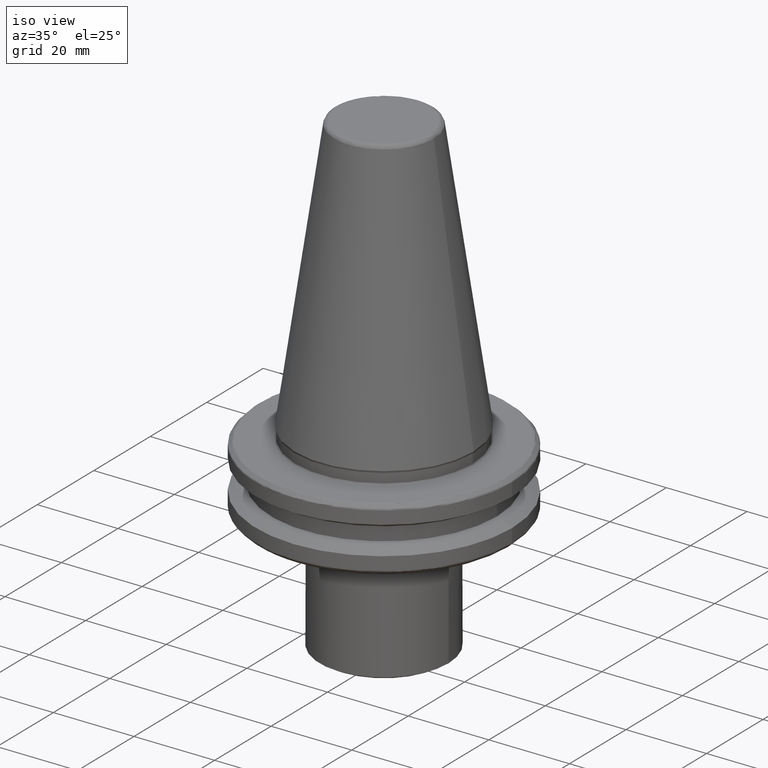
[diagram: clean part render]
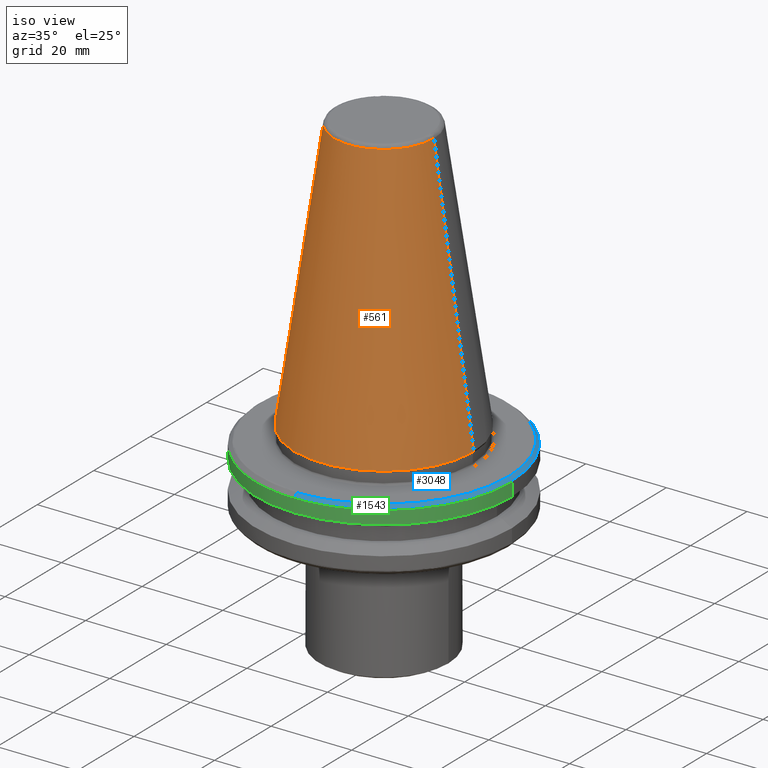
[diagram: same view with three faces highlighted in distinct colors, each labeled with its STEP entity id]
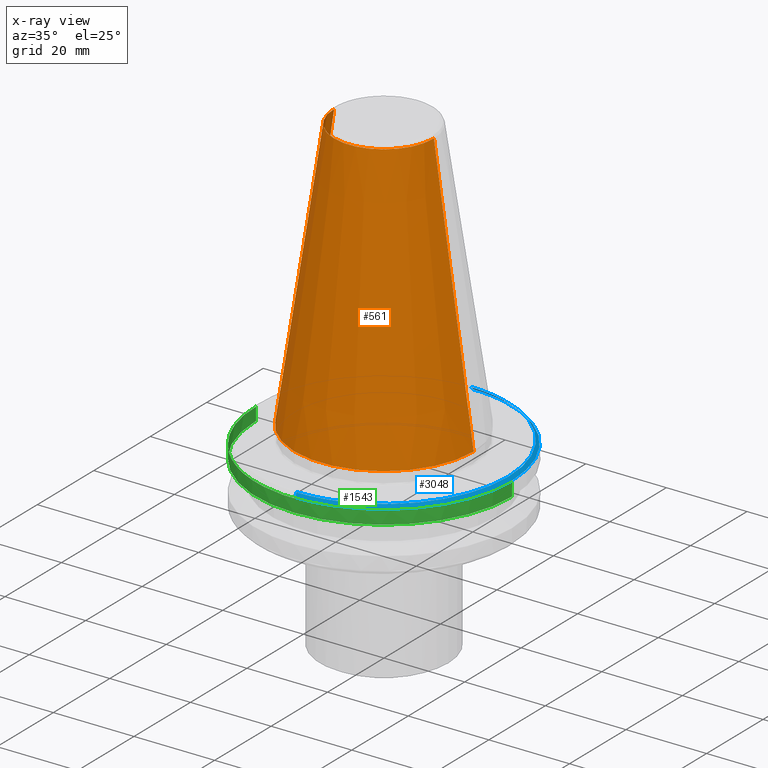
[diagram: x-ray of the same camera — body ghosted, the three highlighted faces saturated]
A machine part, iso view with three faces highlighted in distinct colors.
The next image is the same camera in x-ray (body ghosted, the three faces saturated) — at least one of them is partly hidden behind the body in this view.
Their STEP definitions:

[orange] entity #561 — the highlighted conical surface has half-angle 8.297 deg.
#49 = VERTEX_POINT ( 'NONE', #1449 ) ;
#183 = VERTEX_POINT ( 'NONE', #1882 ) ;
#188 = CARTESIAN_POINT ( 'NONE',  ( 0.0000000000000000000, 0.0000000000000000000, 67.54430822726730800 ) ) ;
#207 = CARTESIAN_POINT ( 'NONE',  ( -22.22499999999999100, 2.721777511104991700E-015, -2.775557561562891400E-014 ) ) ;
#224 = CIRCLE ( 'NONE', #1425, 22.22500000000000100 ) ;
#360 = EDGE_LOOP ( 'NONE', ( #491, #1613, #2373, #1432 ) ) ;
#448 = EDGE_CURVE ( 'NONE', #183, #49, #1281, .T. ) ;
#491 = ORIENTED_EDGE ( 'NONE', *, *, #3017, .F. ) ;
#514 = DIRECTION ( 'NONE',  ( -0.1443082272673070200, 0.0000000000000000000, -0.9895327864921743500 ) ) ;
#516 = CARTESIAN_POINT ( 'NONE',  ( -22.22500000000000500, 0.0000000000000000000, -2.775557561562891400E-014 ) ) ;
#561 = ADVANCED_FACE ( 'NONE', ( #2214 ), #1195, .T. ) ;
#966 = EDGE_CURVE ( 'NONE', #49, #2074, #1838, .T. ) ;
#1195 = CONICAL_SURFACE ( 'NONE', #1662, 22.22500000000000500, 0.1448138465474190200 ) ;
#1273 = EDGE_CURVE ( 'NONE', #2074, #2623, #224, .T. ) ;
#1281 = CIRCLE ( 'NONE', #1753, 12.37469537611110800 ) ;
#1425 = AXIS2_PLACEMENT_3D ( 'NONE', #1616, #2131, #1665 ) ;
#1432 = ORIENTED_EDGE ( 'NONE', *, *, #1273, .T. ) ;
#1449 = CARTESIAN_POINT ( 'NONE',  ( -12.37469537611110800, 0.0000000000000000000, 67.54430822726730800 ) ) ;
#1510 = DIRECTION ( 'NONE',  ( -1.000000000000000000, 0.0000000000000000000, 0.0000000000000000000 ) ) ;
#1611 = DIRECTION ( 'NONE',  ( 0.0000000000000000000, 0.0000000000000000000, -1.000000000000000000 ) ) ;
#1613 = ORIENTED_EDGE ( 'NONE', *, *, #448, .T. ) ;
#1616 = CARTESIAN_POINT ( 'NONE',  ( 0.0000000000000000000, 0.0000000000000000000, -2.775557561562891400E-014 ) ) ;
#1640 = DIRECTION ( 'NONE',  ( -1.000000000000000000, 0.0000000000000000000, 0.0000000000000000000 ) ) ;
#1662 = AXIS2_PLACEMENT_3D ( 'NONE', #2089, #2711, #1640 ) ;
#1665 = DIRECTION ( 'NONE',  ( -1.000000000000000000, 0.0000000000000000000, 6.244223985518314900E-016 ) ) ;
#1753 = AXIS2_PLACEMENT_3D ( 'NONE', #188, #1611, #1510 ) ;
#1838 = LINE ( 'NONE', #516, #2140 ) ;
#1882 = CARTESIAN_POINT ( 'NONE',  ( 12.37469537611110800, 2.118620309691397300E-015, 67.54430822726730800 ) ) ;
#2074 = VERTEX_POINT ( 'NONE', #207 ) ;
#2089 = CARTESIAN_POINT ( 'NONE',  ( 0.0000000000000000000, 0.0000000000000000000, -2.775557561562891400E-014 ) ) ;
#2131 = DIRECTION ( 'NONE',  ( -0.0000000000000000000, -0.0000000000000000000, 1.000000000000000000 ) ) ;
#2140 = VECTOR ( 'NONE', #514, 1000.000000000000000 ) ;
#2164 = VECTOR ( 'NONE', #2313, 1000.000000000000000 ) ;
#2193 = CARTESIAN_POINT ( 'NONE',  ( 22.22499999999999100, 0.0000000000000000000, -2.775557561562891400E-014 ) ) ;
#2213 = LINE ( 'NONE', #2963, #2164 ) ;
#2214 = FACE_OUTER_BOUND ( 'NONE', #360, .T. ) ;
#2313 = DIRECTION ( 'NONE',  ( 0.1443082272673070200, 1.767266086135363300E-017, -0.9895327864921743500 ) ) ;
#2373 = ORIENTED_EDGE ( 'NONE', *, *, #966, .T. ) ;
#2623 = VERTEX_POINT ( 'NONE', #2193 ) ;
#2711 = DIRECTION ( 'NONE',  ( 0.0000000000000000000, 0.0000000000000000000, -1.000000000000000000 ) ) ;
#2963 = CARTESIAN_POINT ( 'NONE',  ( 22.22500000000000500, 2.721777511104993200E-015, -2.775557561562891400E-014 ) ) ;
#3017 = EDGE_CURVE ( 'NONE', #183, #2623, #2213, .T. ) ;

[blue] entity #3048 — the highlighted conical surface has half-angle 45 deg.
#130 = CARTESIAN_POINT ( 'NONE',  ( 30.86715728752537700, 0.0000000000000000000, -3.317157287525380700 ) ) ;
#145 = CARTESIAN_POINT ( 'NONE',  ( 0.0000000000000000000, 0.0000000000000000000, -3.317157287525380700 ) ) ;
#253 = DIRECTION ( 'NONE',  ( 1.000000000000000000, 0.0000000000000000000, 0.0000000000000000000 ) ) ;
#256 = DIRECTION ( 'NONE',  ( 0.0000000000000000000, 0.0000000000000000000, 1.000000000000000000 ) ) ;
#259 = LINE ( 'NONE', #2355, #1632 ) ;
#262 = CARTESIAN_POINT ( 'NONE',  ( 0.0000000000000000000, 0.0000000000000000000, -3.317157287525380700 ) ) ;
#289 = AXIS2_PLACEMENT_3D ( 'NONE', #262, #256, #253 ) ;
#299 = CARTESIAN_POINT ( 'NONE',  ( 3.780136537094580100E-015, -30.86715728752535500, -3.317157287525355400 ) ) ;
#469 = CARTESIAN_POINT ( 'NONE',  ( 3.873905957576373000E-015, -31.63284271247463100, -4.082842712474624500 ) ) ;
#470 = EDGE_CURVE ( 'NONE', #1479, #1694, #259, .T. ) ;
#471 = DIRECTION ( 'NONE',  ( 8.659560562354960000E-017, -0.7071067811865496800, -0.7071067811865453500 ) ) ;
#479 = ORIENTED_EDGE ( 'NONE', *, *, #1832, .T. ) ;
#547 = EDGE_CURVE ( 'NONE', #2469, #1917, #2478, .T. ) ;
#560 = CARTESIAN_POINT ( 'NONE',  ( 8.632842712474627000, -29.63537456679945200, -3.317157287525362500 ) ) ;
#571 = ORIENTED_EDGE ( 'NONE', *, *, #2741, .T. ) ;
#584 = CIRCLE ( 'NONE', #3061, 30.86715728752537700 ) ;
#638 = EDGE_CURVE ( 'NONE', #1917, #1788, #3070, .T. ) ;
#717 = EDGE_CURVE ( 'NONE', #2060, #2810, #3025, .T. ) ;
#764 = DIRECTION ( 'NONE',  ( 1.000000000000000000, 0.0000000000000000000, 0.0000000000000000000 ) ) ;
#796 = CIRCLE ( 'NONE', #3037, 30.86715728752535500 ) ;
#815 = CARTESIAN_POINT ( 'NONE',  ( 8.632842712474664300, 29.63537456679945900, -3.317157287525382100 ) ) ;
#855 = CARTESIAN_POINT ( 'NONE',  ( 8.577655408518413800, -30.44766929938766300, -4.082842712474628900 ) ) ;
#922 = ORIENTED_EDGE ( 'NONE', *, *, #1135, .F. ) ;
#992 = DIRECTION ( 'NONE',  ( 0.0000000000000000000, 0.7071067811865496800, -0.7071067811865453500 ) ) ;
#1076 = CARTESIAN_POINT ( 'NONE',  ( 0.0000000000000000000, 30.86715728752535500, -3.317157287525355400 ) ) ;
#1120 = CIRCLE ( 'NONE', #2645, 31.63284271247460200 ) ;
#1135 = EDGE_CURVE ( 'NONE', #2060, #1244, #2239, .T. ) ;
#1215 = CARTESIAN_POINT ( 'NONE',  ( 2.004612172232560100E-014, 0.0000000000000000000, -4.082842712474599600 ) ) ;
#1244 = VERTEX_POINT ( 'NONE', #130 ) ;
#1262 = AXIS2_PLACEMENT_3D ( 'NONE', #2634, #2385, #2550 ) ;
#1293 = AXIS2_PLACEMENT_3D ( 'NONE', #2606, #2572, #1666 ) ;
#1322 = DIRECTION ( 'NONE',  ( -1.000000000000000000, 0.0000000000000000000, 5.483931658449105800E-017 ) ) ;
#1329 = DIRECTION ( 'NONE',  ( -0.0000000000000000000, -0.0000000000000000000, 1.000000000000000000 ) ) ;
#1330 = CARTESIAN_POINT ( 'NONE',  ( 0.0000000000000000000, 0.0000000000000000000, -4.082842712474624500 ) ) ;
#1374 = DIRECTION ( 'NONE',  ( -8.728168432587708200E-016, -0.0000000000000000000, -1.000000000000000000 ) ) ;
#1392 = CARTESIAN_POINT ( 'NONE',  ( 2.071442485785905000E-014, 0.0000000000000000000, -3.317157287525355400 ) ) ;
#1394 = DIRECTION ( 'NONE',  ( -1.000000000000000000, 0.0000000000000000000, 8.774290653518577100E-016 ) ) ;
#1403 = DIRECTION ( 'NONE',  ( -1.000000000000000000, 0.0000000000000000000, 8.710945950473743300E-016 ) ) ;
#1409 = DIRECTION ( 'NONE',  ( -8.728168432587708200E-016, -0.0000000000000000000, -1.000000000000000000 ) ) ;
#1479 = VERTEX_POINT ( 'NONE', #1076 ) ;
#1493 = AXIS2_PLACEMENT_3D ( 'NONE', #1215, #1374, #1394 ) ;
#1498 = CARTESIAN_POINT ( 'NONE',  ( 31.63284271247463100, 0.0000000000000000000, -4.082842712474625400 ) ) ;
#1529 = ORIENTED_EDGE ( 'NONE', *, *, #2931, .F. ) ;
#1530 = DIRECTION ( 'NONE',  ( -1.000000000000000000, 0.0000000000000000000, 8.710945950473743300E-016 ) ) ;
#1536 = DIRECTION ( 'NONE',  ( -8.728168432587708200E-016, -0.0000000000000000000, -1.000000000000000000 ) ) ;
#1541 = CARTESIAN_POINT ( 'NONE',  ( 2.071442485785905000E-014, 0.0000000000000000000, -3.317157287525355400 ) ) ;
#1565 = ORIENTED_EDGE ( 'NONE', *, *, #2379, .F. ) ;
#1577 = AXIS2_PLACEMENT_3D ( 'NONE', #1392, #1409, #1403 ) ;
#1614 = VERTEX_POINT ( 'NONE', #2642 ) ;
#1617 = CARTESIAN_POINT ( 'NONE',  ( 8.505395553603408500, 30.46793370986786100, -4.082842712474626300 ) ) ;
#1632 = VECTOR ( 'NONE', #992, 1000.000000000000000 ) ;
#1666 = DIRECTION ( 'NONE',  ( -1.000000000000000000, 0.0000000000000000000, 5.483931658449105800E-017 ) ) ;
#1694 = VERTEX_POINT ( 'NONE', #2014 ) ;
#1788 = VERTEX_POINT ( 'NONE', #1617 ) ;
#1832 = EDGE_CURVE ( 'NONE', #1479, #2471, #796, .T. ) ;
#1887 = LINE ( 'NONE', #469, #1919 ) ;
#1917 = VERTEX_POINT ( 'NONE', #1498 ) ;
#1919 = VECTOR ( 'NONE', #471, 1000.000000000000000 ) ;
#1945 = ORIENTED_EDGE ( 'NONE', *, *, #547, .T. ) ;
#2014 = CARTESIAN_POINT ( 'NONE',  ( 0.0000000000000000000, 31.63284271247460900, -4.082842712474599600 ) ) ;
#2060 = VERTEX_POINT ( 'NONE', #560 ) ;
#2073 = CIRCLE ( 'NONE', #1493, 31.63284271247460200 ) ;
#2136 = ORIENTED_EDGE ( 'NONE', *, *, #717, .T. ) ;
#2227 = FACE_OUTER_BOUND ( 'NONE', #2832, .T. ) ;
#2239 = CIRCLE ( 'NONE', #289, 30.86715728752537700 ) ;
#2335 = CONICAL_SURFACE ( 'NONE', #1262, 31.63284271247463100, 0.7853981633974513900 ) ;
#2343 = DIRECTION ( 'NONE',  ( 0.0000000000000000000, 0.0000000000000000000, 1.000000000000000000 ) ) ;
#2355 = CARTESIAN_POINT ( 'NONE',  ( 0.0000000000000000000, 31.63284271247463100, -4.082842712474622700 ) ) ;
#2379 = EDGE_CURVE ( 'NONE', #1694, #1788, #1120, .T. ) ;
#2385 = DIRECTION ( 'NONE',  ( 0.0000000000000000000, 1.370982914612276600E-017, -1.000000000000000000 ) ) ;
#2469 = VERTEX_POINT ( 'NONE', #855 ) ;
#2471 = VERTEX_POINT ( 'NONE', #815 ) ;
#2478 = CIRCLE ( 'NONE', #2725, 31.63284271247463100 ) ;
#2550 = DIRECTION ( 'NONE',  ( 0.0000000000000000000, 1.000000000000000000, 2.741965829224552900E-017 ) ) ;
#2572 = DIRECTION ( 'NONE',  ( -0.0000000000000000000, -0.0000000000000000000, 1.000000000000000000 ) ) ;
#2606 = CARTESIAN_POINT ( 'NONE',  ( 0.0000000000000000000, 0.0000000000000000000, -4.082842712474624500 ) ) ;
#2617 = ORIENTED_EDGE ( 'NONE', *, *, #2620, .F. ) ;
#2620 = EDGE_CURVE ( 'NONE', #1244, #2471, #584, .T. ) ;
#2634 = CARTESIAN_POINT ( 'NONE',  ( 0.0000000000000000000, 0.0000000000000000000, -4.082842712474623600 ) ) ;
#2642 = CARTESIAN_POINT ( 'NONE',  ( 3.873905957576369000E-015, -31.63284271247460200, -4.082842712474599600 ) ) ;
#2645 = AXIS2_PLACEMENT_3D ( 'NONE', #3006, #2997, #2987 ) ;
#2722 = ORIENTED_EDGE ( 'NONE', *, *, #470, .F. ) ;
#2725 = AXIS2_PLACEMENT_3D ( 'NONE', #1330, #1329, #1322 ) ;
#2741 = EDGE_CURVE ( 'NONE', #2810, #1614, #1887, .T. ) ;
#2768 = ORIENTED_EDGE ( 'NONE', *, *, #638, .T. ) ;
#2810 = VERTEX_POINT ( 'NONE', #299 ) ;
#2832 = EDGE_LOOP ( 'NONE', ( #2136, #571, #1529, #1945, #2768, #1565, #2722, #479, #2617, #922 ) ) ;
#2931 = EDGE_CURVE ( 'NONE', #2469, #1614, #2073, .T. ) ;
#2987 = DIRECTION ( 'NONE',  ( -1.000000000000000000, 0.0000000000000000000, 8.774290653518577100E-016 ) ) ;
#2997 = DIRECTION ( 'NONE',  ( -8.728168432587708200E-016, -0.0000000000000000000, -1.000000000000000000 ) ) ;
#3006 = CARTESIAN_POINT ( 'NONE',  ( 2.004612172232560100E-014, 0.0000000000000000000, -4.082842712474599600 ) ) ;
#3025 = CIRCLE ( 'NONE', #1577, 30.86715728752535500 ) ;
#3037 = AXIS2_PLACEMENT_3D ( 'NONE', #1541, #1536, #1530 ) ;
#3048 = ADVANCED_FACE ( 'NONE', ( #2227 ), #2335, .T. ) ;
#3061 = AXIS2_PLACEMENT_3D ( 'NONE', #145, #2343, #764 ) ;
#3070 = CIRCLE ( 'NONE', #1293, 31.63284271247463100 ) ;

[green] entity #1543 — the highlighted cylindrical surface (partial cylindrical patch) has radius 31.75 mm, axis along (0, 0, 1).
#21 = CIRCLE ( 'NONE', #810, 31.75000000000000000 ) ;
#131 = DIRECTION ( 'NONE',  ( 1.000000000000000000, 0.0000000000000000000, 0.0000000000000000000 ) ) ;
#136 = DIRECTION ( 'NONE',  ( 0.0000000000000000000, 0.0000000000000000000, 1.000000000000000000 ) ) ;
#138 = CARTESIAN_POINT ( 'NONE',  ( 0.0000000000000000000, 0.0000000000000000000, -7.578163357943284800 ) ) ;
#146 = CIRCLE ( 'NONE', #351, 31.75000000000000000 ) ;
#184 = DIRECTION ( 'NONE',  ( -1.000000000000000000, 0.0000000000000000000, 8.741913579725648200E-016 ) ) ;
#187 = DIRECTION ( 'NONE',  ( -8.728168432587708200E-016, -0.0000000000000000000, -1.000000000000000000 ) ) ;
#194 = CARTESIAN_POINT ( 'NONE',  ( 1.979925183888475600E-014, 0.0000000000000000000, -4.365685424949215400 ) ) ;
#211 = CIRCLE ( 'NONE', #430, 31.74999999999997900 ) ;
#212 = CARTESIAN_POINT ( 'NONE',  ( -31.75000000000000000, 3.888253587292846500E-015, -4.365685424949236700 ) ) ;
#223 = CARTESIAN_POINT ( 'NONE',  ( 8.717907037342282500, -30.52966748735167700, -4.365685424949240300 ) ) ;
#293 = CARTESIAN_POINT ( 'NONE',  ( -25.80334280669852000, -18.50000000000000400, -4.365685424949237600 ) ) ;
#297 = EDGE_CURVE ( 'NONE', #2844, #2080, #21, .T. ) ;
#312 = CARTESIAN_POINT ( 'NONE',  ( -8.600431037885643400, -30.56296919415018800, -4.365685424949241200 ) ) ;
#351 = AXIS2_PLACEMENT_3D ( 'NONE', #138, #136, #131 ) ;
#413 = AXIS2_PLACEMENT_3D ( 'NONE', #2735, #2698, #2742 ) ;
#430 = AXIS2_PLACEMENT_3D ( 'NONE', #194, #187, #184 ) ;
#446 = CARTESIAN_POINT ( 'NONE',  ( 1.979925183888475600E-014, 0.0000000000000000000, -4.365685424949215400 ) ) ;
#520 = CARTESIAN_POINT ( 'NONE',  ( 0.0000000000000000000, 0.0000000000000000000, -4.365685424949236700 ) ) ;
#539 = VERTEX_POINT ( 'NONE', #2749 ) ;
#552 = CIRCLE ( 'NONE', #2593, 31.75000000000000000 ) ;
#631 = FACE_OUTER_BOUND ( 'NONE', #2518, .T. ) ;
#680 = ORIENTED_EDGE ( 'NONE', *, *, #2833, .T. ) ;
#723 = CYLINDRICAL_SURFACE ( 'NONE', #413, 31.75000000000000000 ) ;
#775 = CARTESIAN_POINT ( 'NONE',  ( -31.75000000000000000, 3.888253587292846500E-015, -7.578163357943284800 ) ) ;
#805 = EDGE_CURVE ( 'NONE', #891, #2080, #2549, .T. ) ;
#810 = AXIS2_PLACEMENT_3D ( 'NONE', #2969, #2962, #2911 ) ;
#816 = CIRCLE ( 'NONE', #1167, 31.75000000000000000 ) ;
#849 = CARTESIAN_POINT ( 'NONE',  ( 0.0000000000000000000, -31.75000000000000000, -7.578163357943284800 ) ) ;
#891 = VERTEX_POINT ( 'NONE', #775 ) ;
#934 = ORIENTED_EDGE ( 'NONE', *, *, #1205, .T. ) ;
#1157 = DIRECTION ( 'NONE',  ( 0.0000000000000000000, 0.0000000000000000000, 1.000000000000000000 ) ) ;
#1158 = VERTEX_POINT ( 'NONE', #223 ) ;
#1167 = AXIS2_PLACEMENT_3D ( 'NONE', #1900, #1893, #1890 ) ;
#1181 = EDGE_CURVE ( 'NONE', #539, #2844, #211, .T. ) ;
#1205 = EDGE_CURVE ( 'NONE', #2507, #1657, #146, .T. ) ;
#1427 = VERTEX_POINT ( 'NONE', #312 ) ;
#1439 = CIRCLE ( 'NONE', #2625, 31.75000000000000000 ) ;
#1501 = ORIENTED_EDGE ( 'NONE', *, *, #297, .T. ) ;
#1543 = ADVANCED_FACE ( 'NONE', ( #631 ), #723, .T. ) ;
#1562 = ORIENTED_EDGE ( 'NONE', *, *, #2321, .T. ) ;
#1572 = CIRCLE ( 'NONE', #1988, 31.74999999999997900 ) ;
#1627 = DIRECTION ( 'NONE',  ( 1.000000000000000000, 0.0000000000000000000, 0.0000000000000000000 ) ) ;
#1636 = DIRECTION ( 'NONE',  ( 0.0000000000000000000, 0.0000000000000000000, 1.000000000000000000 ) ) ;
#1638 = CARTESIAN_POINT ( 'NONE',  ( 0.0000000000000000000, 0.0000000000000000000, -4.365685424949244700 ) ) ;
#1657 = VERTEX_POINT ( 'NONE', #1978 ) ;
#1696 = ORIENTED_EDGE ( 'NONE', *, *, #1181, .T. ) ;
#1706 = EDGE_CURVE ( 'NONE', #891, #2507, #816, .T. ) ;
#1707 = CARTESIAN_POINT ( 'NONE',  ( 31.75000000000000000, 0.0000000000000000000, 69.75694866325665100 ) ) ;
#1761 = ORIENTED_EDGE ( 'NONE', *, *, #1706, .T. ) ;
#1766 = EDGE_CURVE ( 'NONE', #1158, #2286, #552, .T. ) ;
#1844 = DIRECTION ( 'NONE',  ( 0.0000000000000000000, 0.0000000000000000000, 1.000000000000000000 ) ) ;
#1890 = DIRECTION ( 'NONE',  ( 1.000000000000000000, 0.0000000000000000000, 0.0000000000000000000 ) ) ;
#1891 = DIRECTION ( 'NONE',  ( -0.0000000000000000000, -0.0000000000000000000, -1.000000000000000000 ) ) ;
#1893 = DIRECTION ( 'NONE',  ( 0.0000000000000000000, 0.0000000000000000000, 1.000000000000000000 ) ) ;
#1900 = CARTESIAN_POINT ( 'NONE',  ( 0.0000000000000000000, 0.0000000000000000000, -7.578163357943284800 ) ) ;
#1978 = CARTESIAN_POINT ( 'NONE',  ( 31.75000000000000000, 0.0000000000000000000, -7.578163357943284800 ) ) ;
#1988 = AXIS2_PLACEMENT_3D ( 'NONE', #446, #2008, #2852 ) ;
#2008 = DIRECTION ( 'NONE',  ( -8.728168432587708200E-016, -0.0000000000000000000, -1.000000000000000000 ) ) ;
#2019 = ORIENTED_EDGE ( 'NONE', *, *, #2960, .T. ) ;
#2080 = VERTEX_POINT ( 'NONE', #212 ) ;
#2083 = LINE ( 'NONE', #1707, #2106 ) ;
#2099 = ORIENTED_EDGE ( 'NONE', *, *, #1766, .F. ) ;
#2106 = VECTOR ( 'NONE', #1844, 1000.000000000000000 ) ;
#2286 = VERTEX_POINT ( 'NONE', #2304 ) ;
#2304 = CARTESIAN_POINT ( 'NONE',  ( 31.75000000000000000, 0.0000000000000000000, -4.365685424949244700 ) ) ;
#2321 = EDGE_CURVE ( 'NONE', #1427, #539, #1439, .T. ) ;
#2507 = VERTEX_POINT ( 'NONE', #849 ) ;
#2518 = EDGE_LOOP ( 'NONE', ( #2585, #1761, #934, #2019, #2099, #680, #1562, #1696, #1501 ) ) ;
#2549 = LINE ( 'NONE', #2772, #3003 ) ;
#2585 = ORIENTED_EDGE ( 'NONE', *, *, #805, .F. ) ;
#2593 = AXIS2_PLACEMENT_3D ( 'NONE', #1638, #1636, #1627 ) ;
#2625 = AXIS2_PLACEMENT_3D ( 'NONE', #520, #1891, #2766 ) ;
#2698 = DIRECTION ( 'NONE',  ( 0.0000000000000000000, 0.0000000000000000000, 1.000000000000000000 ) ) ;
#2735 = CARTESIAN_POINT ( 'NONE',  ( 0.0000000000000000000, 0.0000000000000000000, 69.75694866325665100 ) ) ;
#2742 = DIRECTION ( 'NONE',  ( 1.000000000000000000, 0.0000000000000000000, 0.0000000000000000000 ) ) ;
#2749 = CARTESIAN_POINT ( 'NONE',  ( -18.50000000000001100, -25.80334280669851300, -4.365685424949262500 ) ) ;
#2766 = DIRECTION ( 'NONE',  ( 1.000000000000000000, 1.776356839400250500E-015, 0.0000000000000000000 ) ) ;
#2772 = CARTESIAN_POINT ( 'NONE',  ( -31.75000000000000000, 3.888253587292846500E-015, 69.75694866325665100 ) ) ;
#2833 = EDGE_CURVE ( 'NONE', #1158, #1427, #1572, .T. ) ;
#2844 = VERTEX_POINT ( 'NONE', #293 ) ;
#2852 = DIRECTION ( 'NONE',  ( -1.000000000000000000, 0.0000000000000000000, 8.741913579725648200E-016 ) ) ;
#2911 = DIRECTION ( 'NONE',  ( 1.000000000000000000, 0.0000000000000000000, 0.0000000000000000000 ) ) ;
#2960 = EDGE_CURVE ( 'NONE', #1657, #2286, #2083, .T. ) ;
#2962 = DIRECTION ( 'NONE',  ( -0.0000000000000000000, -0.0000000000000000000, -1.000000000000000000 ) ) ;
#2969 = CARTESIAN_POINT ( 'NONE',  ( 0.0000000000000000000, 0.0000000000000000000, -4.365685424949236700 ) ) ;
#3003 = VECTOR ( 'NONE', #1157, 1000.000000000000000 ) ;